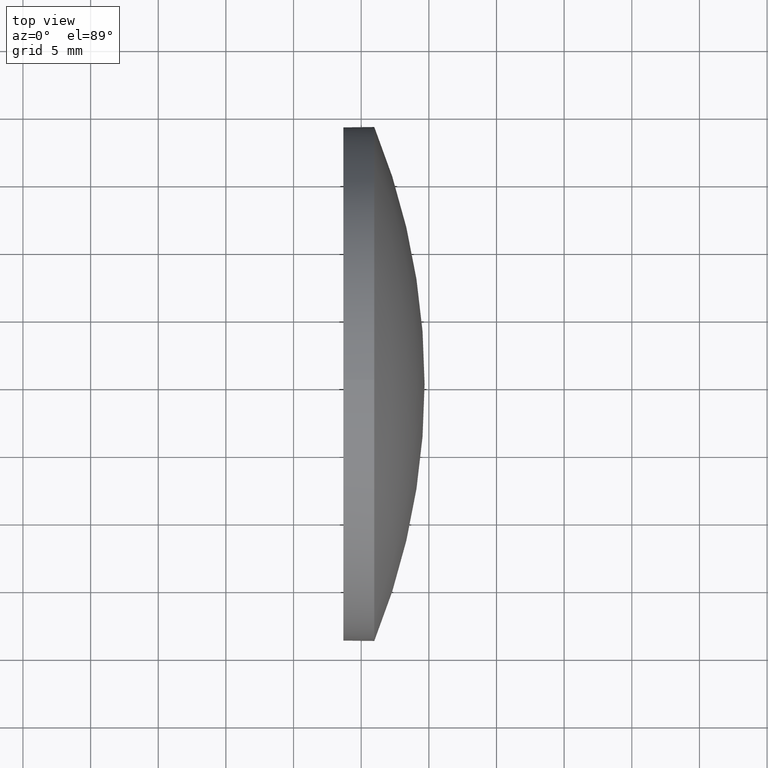
[diagram: clean part render]
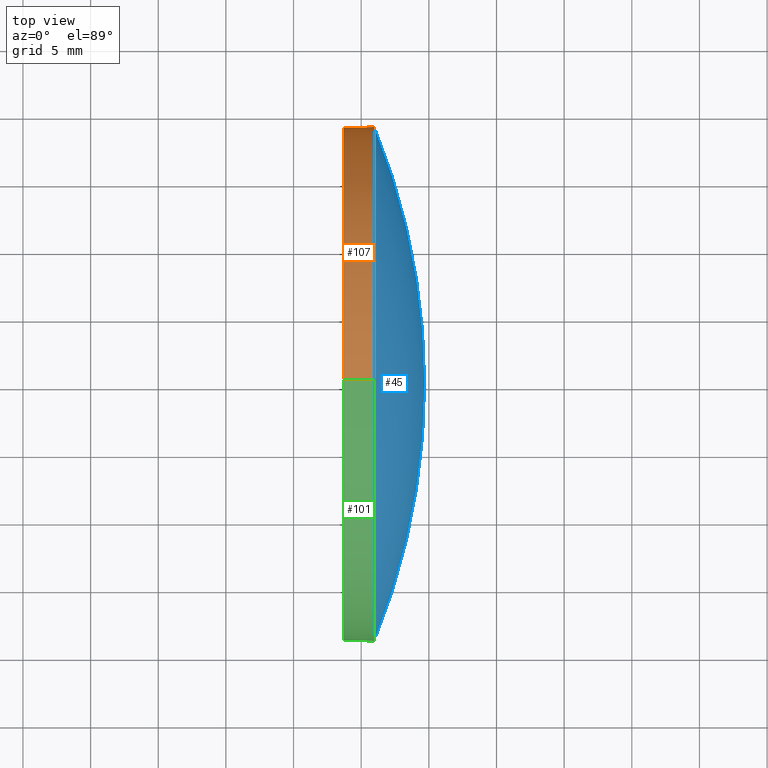
[diagram: same view with three faces highlighted in distinct colors, each labeled with its STEP entity id]
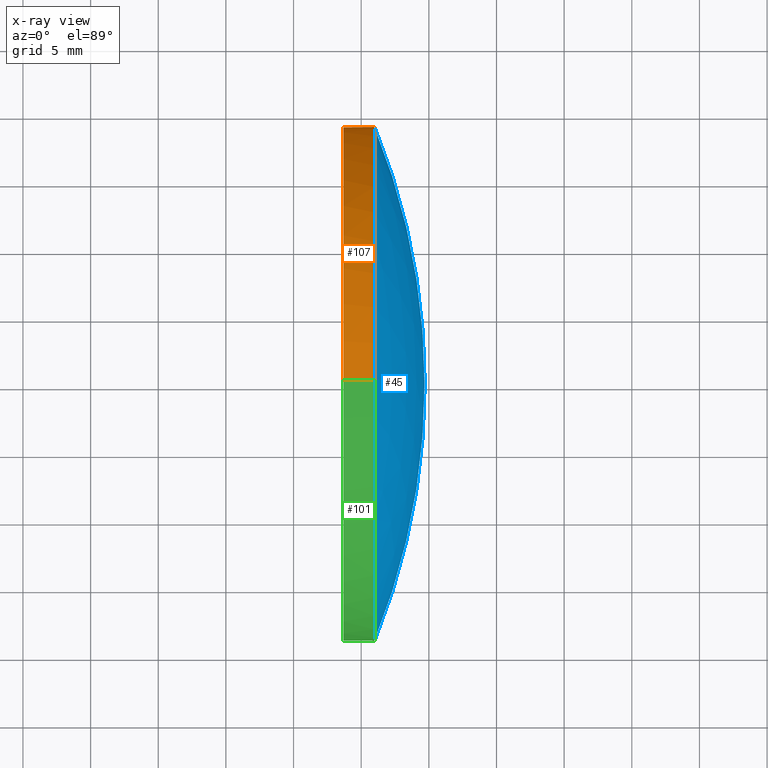
[diagram: x-ray of the same camera — body ghosted, the three highlighted faces saturated]
A machine part, top view with three faces highlighted in distinct colors.
The next image is the same camera in x-ray (body ghosted, the three faces saturated) — at least one of them is partly hidden behind the body in this view.
Their STEP definitions:

[orange] entity #107 — the highlighted cylindrical surface (partial cylindrical patch) has radius 18.9952 mm, axis along (-1, -0, -0).
#1 = ORIENTED_EDGE ( 'NONE', *, *, #15, .F. ) ;
#10 = CARTESIAN_POINT ( 'NONE',  ( 2690.967891092362606, -224.9176971297049761, 18.99524358284340764 ) ) ;
#13 = CARTESIAN_POINT ( 'NONE',  ( 2681.918207452240949, -224.9176971297049761, 0.000000000000000000 ) ) ;
#15 = EDGE_CURVE ( 'NONE', #126, #47, #105, .T. ) ;
#19 = VERTEX_POINT ( 'NONE', #80 ) ;
#21 = DIRECTION ( 'NONE',  ( -1.000000000000000000, -0.000000000000000000, -0.000000000000000000 ) ) ;
#35 = ORIENTED_EDGE ( 'NONE', *, *, #97, .T. ) ;
#36 = ORIENTED_EDGE ( 'NONE', *, *, #185, .T. ) ;
#37 = DIRECTION ( 'NONE',  ( -1.000000000000000000, -0.000000000000000000, -0.000000000000000000 ) ) ;
#46 = ORIENTED_EDGE ( 'NONE', *, *, #73, .F. ) ;
#47 = VERTEX_POINT ( 'NONE', #150 ) ;
#50 = AXIS2_PLACEMENT_3D ( 'NONE', #99, #52, #83 ) ;
#52 = DIRECTION ( 'NONE',  ( -1.000000000000000000, -0.000000000000000000, -0.000000000000000000 ) ) ;
#53 = AXIS2_PLACEMENT_3D ( 'NONE', #13, #182, #98 ) ;
#54 = EDGE_CURVE ( 'NONE', #152, #123, #59, .T. ) ;
#59 = CIRCLE ( 'NONE', #102, 18.99524358284340764 ) ;
#64 = VECTOR ( 'NONE', #37, 1000.000000000000000 ) ;
#70 = CARTESIAN_POINT ( 'NONE',  ( 2681.918207452240949, -224.9176971297049761, -18.99524358284340764 ) ) ;
#73 = EDGE_CURVE ( 'NONE', #47, #19, #140, .T. ) ;
#76 = EDGE_LOOP ( 'NONE', ( #176, #35, #46, #1, #36 ) ) ;
#77 = AXIS2_PLACEMENT_3D ( 'NONE', #96, #113, #168 ) ;
#79 = DIRECTION ( 'NONE',  ( 0.000000000000000000, 0.000000000000000000, 1.000000000000000000 ) ) ;
#80 = CARTESIAN_POINT ( 'NONE',  ( 2688.685654048536435, -224.9176971297049761, -18.99524358284340764 ) ) ;
#83 = DIRECTION ( 'NONE',  ( 0.000000000000000000, 0.000000000000000000, 1.000000000000000000 ) ) ;
#95 = FACE_OUTER_BOUND ( 'NONE', #76, .T. ) ;
#96 = CARTESIAN_POINT ( 'NONE',  ( 2690.967891092362606, -224.9176971297049761, 0.000000000000000000 ) ) ;
#97 = EDGE_CURVE ( 'NONE', #123, #19, #110, .T. ) ;
#98 = DIRECTION ( 'NONE',  ( 0.000000000000000000, 0.000000000000000000, 1.000000000000000000 ) ) ;
#99 = CARTESIAN_POINT ( 'NONE',  ( 2688.685654048536435, -224.9176971297049761, 0.000000000000000000 ) ) ;
#102 = AXIS2_PLACEMENT_3D ( 'NONE', #121, #21, #79 ) ;
#105 = LINE ( 'NONE', #109, #64 ) ;
#107 = ADVANCED_FACE ( 'NONE', ( #95 ), #147, .T. ) ;
#109 = CARTESIAN_POINT ( 'NONE',  ( 2681.918207452240949, -224.9176971297049761, 18.99524358284340764 ) ) ;
#110 = LINE ( 'NONE', #70, #119 ) ;
#113 = DIRECTION ( 'NONE',  ( -1.000000000000000000, -0.000000000000000000, -0.000000000000000000 ) ) ;
#119 = VECTOR ( 'NONE', #181, 1000.000000000000000 ) ;
#121 = CARTESIAN_POINT ( 'NONE',  ( 2690.967891092362606, -224.9176971297049761, 0.000000000000000000 ) ) ;
#123 = VERTEX_POINT ( 'NONE', #183 ) ;
#126 = VERTEX_POINT ( 'NONE', #10 ) ;
#130 = CARTESIAN_POINT ( 'NONE',  ( 2690.967891092362606, -205.9224535468616182, 0.000000000000000000 ) ) ;
#137 = CIRCLE ( 'NONE', #77, 18.99524358284340764 ) ;
#140 = CIRCLE ( 'NONE', #50, 18.99524358284340764 ) ;
#147 = CYLINDRICAL_SURFACE ( 'NONE', #53, 18.99524358284340764 ) ;
#150 = CARTESIAN_POINT ( 'NONE',  ( 2688.685654048536435, -224.9176971297049761, 18.99524358284340764 ) ) ;
#152 = VERTEX_POINT ( 'NONE', #130 ) ;
#168 = DIRECTION ( 'NONE',  ( 0.000000000000000000, 0.000000000000000000, 1.000000000000000000 ) ) ;
#176 = ORIENTED_EDGE ( 'NONE', *, *, #54, .T. ) ;
#181 = DIRECTION ( 'NONE',  ( -1.000000000000000000, -0.000000000000000000, -0.000000000000000000 ) ) ;
#182 = DIRECTION ( 'NONE',  ( -1.000000000000000000, -0.000000000000000000, -0.000000000000000000 ) ) ;
#183 = CARTESIAN_POINT ( 'NONE',  ( 2690.967891092362606, -224.9176971297049761, -18.99524358284340764 ) ) ;
#185 = EDGE_CURVE ( 'NONE', #126, #152, #137, .T. ) ;

[blue] entity #45 — the highlighted spherical surface has radius 50.3853 mm.
#2 = AXIS2_PLACEMENT_3D ( 'NONE', #157, #112, #14 ) ;
#3 = FACE_OUTER_BOUND ( 'NONE', #34, .T. ) ;
#4 = VERTEX_POINT ( 'NONE', #48 ) ;
#5 = DIRECTION ( 'NONE',  ( -0.000000000000000000, 0.000000000000000000, 1.000000000000000000 ) ) ;
#10 = CARTESIAN_POINT ( 'NONE',  ( 2690.967891092362606, -224.9176971297049761, 18.99524358284340764 ) ) ;
#14 = DIRECTION ( 'NONE',  ( 0.000000000000000000, 0.000000000000000000, 1.000000000000000000 ) ) ;
#34 = EDGE_LOOP ( 'NONE', ( #93, #65, #108, #162 ) ) ;
#39 = EDGE_CURVE ( 'NONE', #153, #152, #43, .T. ) ;
#43 = CIRCLE ( 'NONE', #89, 50.38527799999981482 ) ;
#45 = ADVANCED_FACE ( 'NONE', ( #3 ), #90, .T. ) ;
#48 = CARTESIAN_POINT ( 'NONE',  ( 2690.967891092362606, -243.9129407125483340, -2.326246425275342567E-15 ) ) ;
#49 = CARTESIAN_POINT ( 'NONE',  ( 2644.300376048536691, -224.9176971297049761, 0.000000000000000000 ) ) ;
#58 = DIRECTION ( 'NONE',  ( 1.000000000000000000, 0.000000000000000000, 0.000000000000000000 ) ) ;
#65 = ORIENTED_EDGE ( 'NONE', *, *, #39, .T. ) ;
#69 = AXIS2_PLACEMENT_3D ( 'NONE', #174, #161, #91 ) ;
#77 = AXIS2_PLACEMENT_3D ( 'NONE', #96, #113, #168 ) ;
#78 = EDGE_CURVE ( 'NONE', #153, #4, #145, .T. ) ;
#89 = AXIS2_PLACEMENT_3D ( 'NONE', #136, #5, #58 ) ;
#90 = SPHERICAL_SURFACE ( 'NONE', #69, 50.38527799999996404 ) ;
#91 = DIRECTION ( 'NONE',  ( 0.000000000000000000, 1.000000000000000000, 0.000000000000000000 ) ) ;
#93 = ORIENTED_EDGE ( 'NONE', *, *, #78, .F. ) ;
#96 = CARTESIAN_POINT ( 'NONE',  ( 2690.967891092362606, -224.9176971297049761, 0.000000000000000000 ) ) ;
#108 = ORIENTED_EDGE ( 'NONE', *, *, #185, .F. ) ;
#112 = DIRECTION ( 'NONE',  ( -1.000000000000000000, -0.000000000000000000, -0.000000000000000000 ) ) ;
#113 = DIRECTION ( 'NONE',  ( -1.000000000000000000, -0.000000000000000000, -0.000000000000000000 ) ) ;
#115 = AXIS2_PLACEMENT_3D ( 'NONE', #49, #180, #165 ) ;
#126 = VERTEX_POINT ( 'NONE', #10 ) ;
#130 = CARTESIAN_POINT ( 'NONE',  ( 2690.967891092362606, -205.9224535468616182, 0.000000000000000000 ) ) ;
#132 = EDGE_CURVE ( 'NONE', #4, #126, #166, .T. ) ;
#136 = CARTESIAN_POINT ( 'NONE',  ( 2644.300376048536691, -224.9176971297049761, 0.000000000000000000 ) ) ;
#137 = CIRCLE ( 'NONE', #77, 18.99524358284340764 ) ;
#145 = CIRCLE ( 'NONE', #115, 50.38527799999994983 ) ;
#152 = VERTEX_POINT ( 'NONE', #130 ) ;
#153 = VERTEX_POINT ( 'NONE', #169 ) ;
#157 = CARTESIAN_POINT ( 'NONE',  ( 2690.967891092362606, -224.9176971297049761, 0.000000000000000000 ) ) ;
#161 = DIRECTION ( 'NONE',  ( -0.000000000000000000, 0.000000000000000000, -1.000000000000000000 ) ) ;
#162 = ORIENTED_EDGE ( 'NONE', *, *, #132, .F. ) ;
#165 = DIRECTION ( 'NONE',  ( 0.000000000000000000, 1.000000000000000000, 1.224646799147353700E-16 ) ) ;
#166 = CIRCLE ( 'NONE', #2, 18.99524358284340764 ) ;
#168 = DIRECTION ( 'NONE',  ( 0.000000000000000000, 0.000000000000000000, 1.000000000000000000 ) ) ;
#169 = CARTESIAN_POINT ( 'NONE',  ( 2694.685654048536435, -224.9176971297049761, 0.000000000000000000 ) ) ;
#174 = CARTESIAN_POINT ( 'NONE',  ( 2644.300376048536691, -224.9176971297049761, 0.000000000000000000 ) ) ;
#180 = DIRECTION ( 'NONE',  ( 0.000000000000000000, 1.224646799147353207E-16, -1.000000000000000000 ) ) ;
#185 = EDGE_CURVE ( 'NONE', #126, #152, #137, .T. ) ;

[green] entity #101 — the highlighted cylindrical surface (partial cylindrical patch) has radius 18.9952 mm, axis along (-1, -0, -0).
#2 = AXIS2_PLACEMENT_3D ( 'NONE', #157, #112, #14 ) ;
#4 = VERTEX_POINT ( 'NONE', #48 ) ;
#10 = CARTESIAN_POINT ( 'NONE',  ( 2690.967891092362606, -224.9176971297049761, 18.99524358284340764 ) ) ;
#11 = EDGE_CURVE ( 'NONE', #123, #4, #12, .T. ) ;
#12 = CIRCLE ( 'NONE', #74, 18.99524358284340764 ) ;
#14 = DIRECTION ( 'NONE',  ( 0.000000000000000000, 0.000000000000000000, 1.000000000000000000 ) ) ;
#15 = EDGE_CURVE ( 'NONE', #126, #47, #105, .T. ) ;
#17 = AXIS2_PLACEMENT_3D ( 'NONE', #154, #85, #142 ) ;
#18 = ORIENTED_EDGE ( 'NONE', *, *, #127, .F. ) ;
#19 = VERTEX_POINT ( 'NONE', #80 ) ;
#22 = DIRECTION ( 'NONE',  ( 0.000000000000000000, 0.000000000000000000, 1.000000000000000000 ) ) ;
#24 = AXIS2_PLACEMENT_3D ( 'NONE', #114, #66, #28 ) ;
#28 = DIRECTION ( 'NONE',  ( 0.000000000000000000, 0.000000000000000000, 1.000000000000000000 ) ) ;
#29 = FACE_OUTER_BOUND ( 'NONE', #124, .T. ) ;
#33 = ORIENTED_EDGE ( 'NONE', *, *, #132, .T. ) ;
#37 = DIRECTION ( 'NONE',  ( -1.000000000000000000, -0.000000000000000000, -0.000000000000000000 ) ) ;
#44 = CARTESIAN_POINT ( 'NONE',  ( 2690.967891092362606, -224.9176971297049761, 0.000000000000000000 ) ) ;
#47 = VERTEX_POINT ( 'NONE', #150 ) ;
#48 = CARTESIAN_POINT ( 'NONE',  ( 2690.967891092362606, -243.9129407125483340, -2.326246425275342567E-15 ) ) ;
#60 = ORIENTED_EDGE ( 'NONE', *, *, #15, .T. ) ;
#64 = VECTOR ( 'NONE', #37, 1000.000000000000000 ) ;
#66 = DIRECTION ( 'NONE',  ( -1.000000000000000000, -0.000000000000000000, -0.000000000000000000 ) ) ;
#70 = CARTESIAN_POINT ( 'NONE',  ( 2681.918207452240949, -224.9176971297049761, -18.99524358284340764 ) ) ;
#74 = AXIS2_PLACEMENT_3D ( 'NONE', #44, #149, #22 ) ;
#80 = CARTESIAN_POINT ( 'NONE',  ( 2688.685654048536435, -224.9176971297049761, -18.99524358284340764 ) ) ;
#82 = CYLINDRICAL_SURFACE ( 'NONE', #17, 18.99524358284340764 ) ;
#85 = DIRECTION ( 'NONE',  ( -1.000000000000000000, -0.000000000000000000, -0.000000000000000000 ) ) ;
#94 = ORIENTED_EDGE ( 'NONE', *, *, #97, .F. ) ;
#97 = EDGE_CURVE ( 'NONE', #123, #19, #110, .T. ) ;
#101 = ADVANCED_FACE ( 'NONE', ( #29 ), #82, .T. ) ;
#105 = LINE ( 'NONE', #109, #64 ) ;
#109 = CARTESIAN_POINT ( 'NONE',  ( 2681.918207452240949, -224.9176971297049761, 18.99524358284340764 ) ) ;
#110 = LINE ( 'NONE', #70, #119 ) ;
#112 = DIRECTION ( 'NONE',  ( -1.000000000000000000, -0.000000000000000000, -0.000000000000000000 ) ) ;
#114 = CARTESIAN_POINT ( 'NONE',  ( 2688.685654048536435, -224.9176971297049761, 0.000000000000000000 ) ) ;
#119 = VECTOR ( 'NONE', #181, 1000.000000000000000 ) ;
#123 = VERTEX_POINT ( 'NONE', #183 ) ;
#124 = EDGE_LOOP ( 'NONE', ( #94, #178, #33, #60, #18 ) ) ;
#126 = VERTEX_POINT ( 'NONE', #10 ) ;
#127 = EDGE_CURVE ( 'NONE', #19, #47, #159, .T. ) ;
#132 = EDGE_CURVE ( 'NONE', #4, #126, #166, .T. ) ;
#142 = DIRECTION ( 'NONE',  ( 0.000000000000000000, 0.000000000000000000, 1.000000000000000000 ) ) ;
#149 = DIRECTION ( 'NONE',  ( -1.000000000000000000, -0.000000000000000000, -0.000000000000000000 ) ) ;
#150 = CARTESIAN_POINT ( 'NONE',  ( 2688.685654048536435, -224.9176971297049761, 18.99524358284340764 ) ) ;
#154 = CARTESIAN_POINT ( 'NONE',  ( 2681.918207452240949, -224.9176971297049761, 0.000000000000000000 ) ) ;
#157 = CARTESIAN_POINT ( 'NONE',  ( 2690.967891092362606, -224.9176971297049761, 0.000000000000000000 ) ) ;
#159 = CIRCLE ( 'NONE', #24, 18.99524358284340764 ) ;
#166 = CIRCLE ( 'NONE', #2, 18.99524358284340764 ) ;
#178 = ORIENTED_EDGE ( 'NONE', *, *, #11, .T. ) ;
#181 = DIRECTION ( 'NONE',  ( -1.000000000000000000, -0.000000000000000000, -0.000000000000000000 ) ) ;
#183 = CARTESIAN_POINT ( 'NONE',  ( 2690.967891092362606, -224.9176971297049761, -18.99524358284340764 ) ) ;